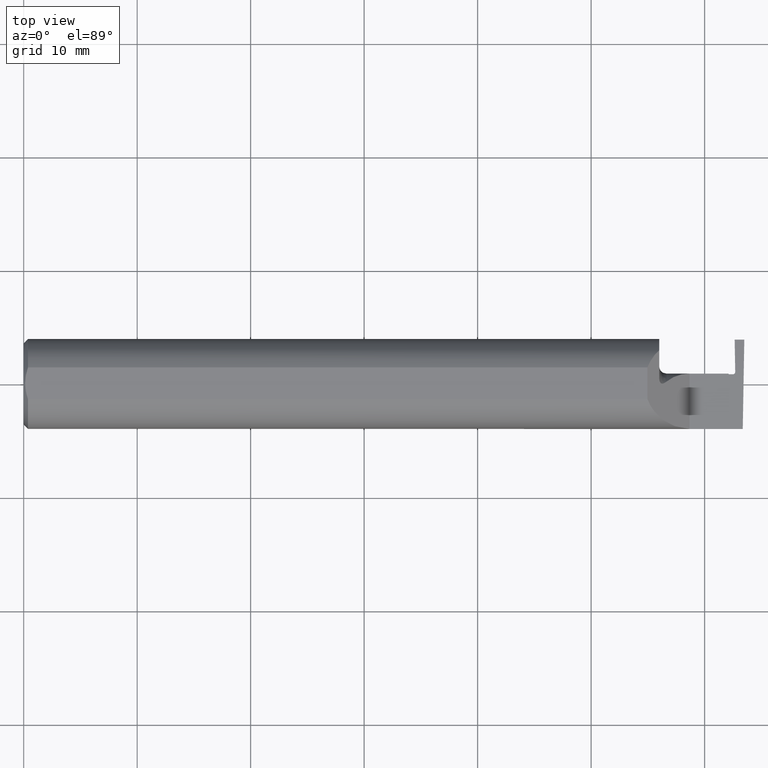
[diagram: clean part render]
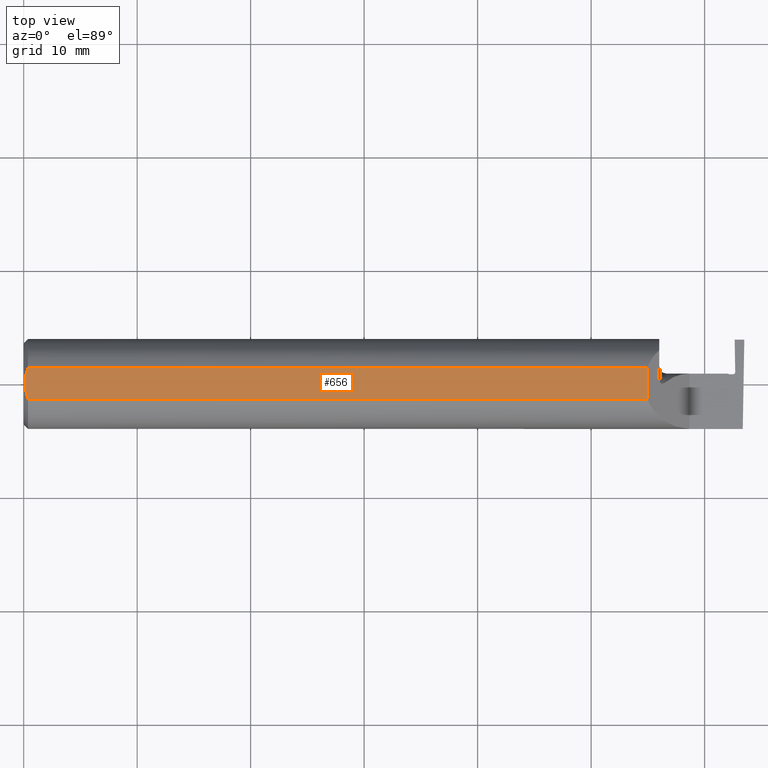
[diagram: same view with one face highlighted and labeled with its STEP entity id]
A machine part, top view. The second image highlights one B-rep face of the part: STEP entity #656.
In plain terms, the highlighted planar face has unit normal (0, -0, 1).
Its self-contained STEP definition (entity closure, byte-faithful):
#3 = ORIENTED_EDGE ( 'NONE', *, *, #769, .F. ) ;
#20 = B_SPLINE_CURVE_WITH_KNOTS ( 'NONE', 3,
 ( #58, #366, #208, #130, #887, #271 ),
 .UNSPECIFIED., .F., .F.,
 ( 4, 2, 4 ),
 ( 0.004704317630101885993, 0.005408659995628783967, 0.006113002361155681942 ),
 .UNSPECIFIED. ) ;
#22 = LINE ( 'NONE', #324, #886 ) ;
#25 = CARTESIAN_POINT ( 'NONE',  ( 0.005929349363808920914, 0.01879672308419500643, 0.1460999999999999799 ) ) ;
#40 = AXIS2_PLACEMENT_3D ( 'NONE', #290, #439, #376 ) ;
#58 = CARTESIAN_POINT ( 'NONE',  ( 0.004999999999999936787, 2.057148927093534050E-17, 0.1460999999999999799 ) ) ;
#63 = EDGE_CURVE ( 'NONE', #98, #437, #284, .T. ) ;
#98 = VERTEX_POINT ( 'NONE', #964 ) ;
#101 = CARTESIAN_POINT ( 'NONE',  ( 0.004999999999999936787, 2.057148927093534050E-17, 0.1460999999999999799 ) ) ;
#104 = CARTESIAN_POINT ( 'NONE',  ( 2.163900000000000823, -0.05497272050753899270, 0.1460999999999999799 ) ) ;
#130 = CARTESIAN_POINT ( 'NONE',  ( 0.009356849677355947789, -0.03706298561014172849, 0.1460999999999999799 ) ) ;
#140 = PLANE ( 'NONE',  #40 ) ;
#208 = CARTESIAN_POINT ( 'NONE',  ( 0.005910707775482238607, -0.01866948012536270504, 0.1461000000000000076 ) ) ;
#247 = CARTESIAN_POINT ( 'NONE',  ( 0.004999999999999902960, 0.009391435229055663386, 0.1460999999999999799 ) ) ;
#258 = CARTESIAN_POINT ( 'NONE',  ( 0.01499999999999999771, 0.05497272050753900657, 0.1460999999999999799 ) ) ;
#271 = CARTESIAN_POINT ( 'NONE',  ( 0.01499999999999999944, -0.05497272050753900657, 0.1460999999999999799 ) ) ;
#277 = CARTESIAN_POINT ( 'NONE',  ( 0.000000000000000000, 0.05497272050753900657, 0.1460999999999999799 ) ) ;
#284 = LINE ( 'NONE', #277, #618 ) ;
#290 = CARTESIAN_POINT ( 'NONE',  ( 2.500000000000000000, -0.1561000000000000165, 0.1460999999999999799 ) ) ;
#296 = EDGE_CURVE ( 'NONE', #437, #341, #574, .T. ) ;
#324 = CARTESIAN_POINT ( 'NONE',  ( 2.163900000000000823, -0.1561000000000000165, 0.1460999999999999799 ) ) ;
#341 = VERTEX_POINT ( 'NONE', #582 ) ;
#360 = VECTOR ( 'NONE', #573, 39.37007874015748143 ) ;
#363 = EDGE_LOOP ( 'NONE', ( #3, #606, #934, #906, #630 ) ) ;
#366 = CARTESIAN_POINT ( 'NONE',  ( 0.004999999999999897755, -0.009384304010803548590, 0.1460999999999999521 ) ) ;
#375 = EDGE_CURVE ( 'NONE', #341, #602, #20, .T. ) ;
#376 = DIRECTION ( 'NONE',  ( 1.000000000000000000, 0.000000000000000000, -0.000000000000000000 ) ) ;
#393 = DIRECTION ( 'NONE',  ( 0.000000000000000000, -1.000000000000000000, 0.000000000000000000 ) ) ;
#395 = EDGE_CURVE ( 'NONE', #602, #793, #432, .T. ) ;
#428 = CARTESIAN_POINT ( 'NONE',  ( 0.000000000000000000, -0.05497272050753900657, 0.1460999999999999799 ) ) ;
#432 = LINE ( 'NONE', #428, #360 ) ;
#437 = VERTEX_POINT ( 'NONE', #662 ) ;
#439 = DIRECTION ( 'NONE',  ( 0.000000000000000000, -0.000000000000000000, 1.000000000000000000 ) ) ;
#490 = CARTESIAN_POINT ( 'NONE',  ( 0.009371209226503902576, 0.03711161584255317364, 0.1461000000000000076 ) ) ;
#514 = FACE_OUTER_BOUND ( 'NONE', #363, .T. ) ;
#573 = DIRECTION ( 'NONE',  ( 1.000000000000000000, 0.000000000000000000, 0.000000000000000000 ) ) ;
#574 = B_SPLINE_CURVE_WITH_KNOTS ( 'NONE', 3,
 ( #258, #926, #490, #25, #247, #101 ),
 .UNSPECIFIED., .F., .F.,
 ( 4, 2, 4 ),
 ( 0.003294562426666346362, 0.003999440028384116178, 0.004704317630101885993 ),
 .UNSPECIFIED. ) ;
#582 = CARTESIAN_POINT ( 'NONE',  ( 0.004999999999999936787, 2.057148927093534050E-17, 0.1460999999999999799 ) ) ;
#602 = VERTEX_POINT ( 'NONE', #790 ) ;
#606 = ORIENTED_EDGE ( 'NONE', *, *, #63, .T. ) ;
#618 = VECTOR ( 'NONE', #955, 39.37007874015748143 ) ;
#630 = ORIENTED_EDGE ( 'NONE', *, *, #395, .T. ) ;
#656 = ADVANCED_FACE ( 'NONE', ( #514 ), #140, .T. ) ;
#662 = CARTESIAN_POINT ( 'NONE',  ( 0.01499999999999999771, 0.05497272050753900657, 0.1460999999999999799 ) ) ;
#769 = EDGE_CURVE ( 'NONE', #98, #793, #22, .T. ) ;
#790 = CARTESIAN_POINT ( 'NONE',  ( 0.01499999999999999944, -0.05497272050753900657, 0.1460999999999999799 ) ) ;
#793 = VERTEX_POINT ( 'NONE', #104 ) ;
#886 = VECTOR ( 'NONE', #393, 39.37007874015748143 ) ;
#887 = CARTESIAN_POINT ( 'NONE',  ( 0.01190375560897317594, -0.04618065518901644934, 0.1460999999999999799 ) ) ;
#906 = ORIENTED_EDGE ( 'NONE', *, *, #375, .T. ) ;
#926 = CARTESIAN_POINT ( 'NONE',  ( 0.01187749995209270472, 0.04610609988228752537, 0.1460999999999999799 ) ) ;
#934 = ORIENTED_EDGE ( 'NONE', *, *, #296, .T. ) ;
#955 = DIRECTION ( 'NONE',  ( -1.000000000000000000, -0.000000000000000000, -0.000000000000000000 ) ) ;
#964 = CARTESIAN_POINT ( 'NONE',  ( 2.163900000000000823, 0.05497272050753900657, 0.1460999999999999799 ) ) ;